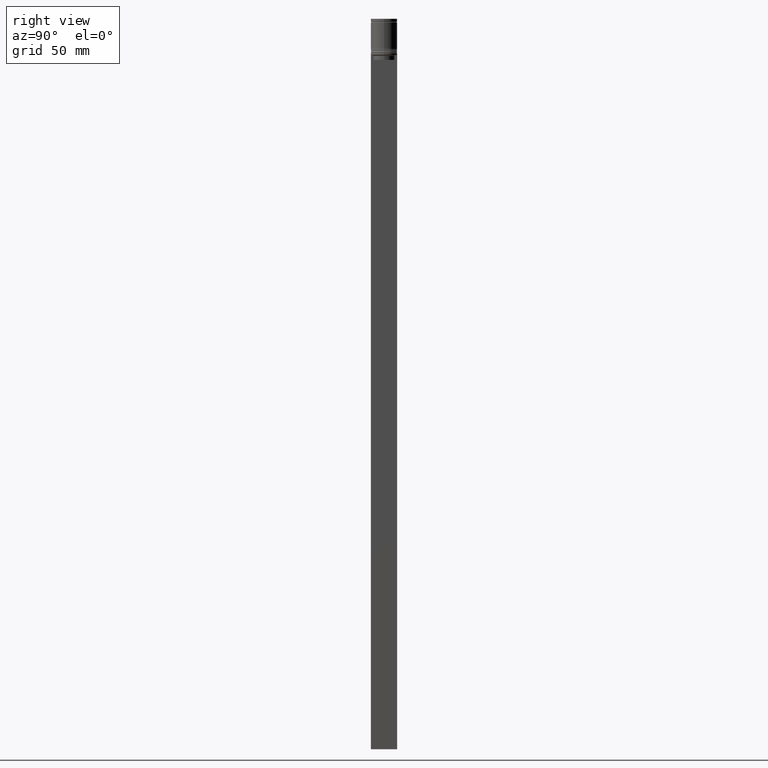
[diagram: clean part render]
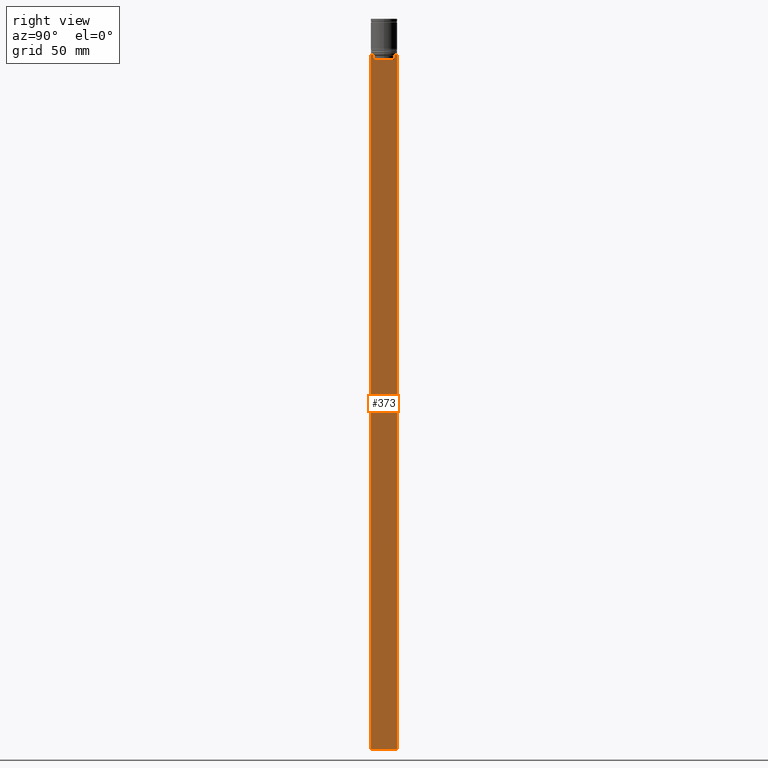
[diagram: same view with one face highlighted and labeled with its STEP entity id]
A machine part, right view. The second image highlights one B-rep face of the part: STEP entity #373.
In plain terms, the highlighted planar face has unit normal (-1, 0, 0).
Its self-contained STEP definition (entity closure, byte-faithful):
#28 = CARTESIAN_POINT ( 'NONE',  ( 0.5000000000000001110, 6.881860213634107382, -22.00000000000000000 ) ) ;
#80 = VERTEX_POINT ( 'NONE', #1444 ) ;
#82 = ORIENTED_EDGE ( 'NONE', *, *, #1868, .F. ) ;
#116 = ORIENTED_EDGE ( 'NONE', *, *, #2067, .T. ) ;
#145 = LINE ( 'NONE', #1569, #670 ) ;
#153 = EDGE_CURVE ( 'NONE', #441, #675, #846, .T. ) ;
#155 = VERTEX_POINT ( 'NONE', #359 ) ;
#168 = EDGE_CURVE ( 'NONE', #1929, #441, #887, .T. ) ;
#175 = LINE ( 'NONE', #1315, #2081 ) ;
#205 = CARTESIAN_POINT ( 'NONE',  ( 0.5000000000000001110, 6.380438856379714530, -22.50000000000000000 ) ) ;
#213 = LINE ( 'NONE', #1212, #303 ) ;
#223 = CARTESIAN_POINT ( 'NONE',  ( 0.5000000000000001110, 6.714736947114698040, -22.16668390704818492 ) ) ;
#230 = CARTESIAN_POINT ( 'NONE',  ( 0.5000000000000001110, 6.380438856379714530, -22.50000000000000000 ) ) ;
#237 = LINE ( 'NONE', #878, #541 ) ;
#241 = LINE ( 'NONE', #1063, #1269 ) ;
#266 = EDGE_CURVE ( 'NONE', #597, #1099, #237, .T. ) ;
#303 = VECTOR ( 'NONE', #1051, 1000.000000000000000 ) ;
#315 = CARTESIAN_POINT ( 'NONE',  ( 0.5000000000000001110, -6.547597841511252348, -22.33335192438651973 ) ) ;
#359 = CARTESIAN_POINT ( 'NONE',  ( 0.5000000000000001110, -8.000000000000003553, -444.0000000000000000 ) ) ;
#371 = CARTESIAN_POINT ( 'NONE',  ( 0.5000000000000001110, 7.884161337770813738, -22.00000000000000000 ) ) ;
#373 = ADVANCED_FACE ( 'NONE', ( #2051 ), #1436, .F. ) ;
#395 = VECTOR ( 'NONE', #2049, 1000.000000000000000 ) ;
#411 = CARTESIAN_POINT ( 'NONE',  ( 0.5000000000000001110, 6.380438856379714530, -24.99999999999999645 ) ) ;
#415 = B_SPLINE_CURVE_WITH_KNOTS ( 'NONE', 3,
 ( #1278, #315, #1422, #2069 ),
 .UNSPECIFIED., .F., .F.,
 ( 4, 4 ),
 ( 0.02996184199614752158, 0.03067452609193706617 ),
 .UNSPECIFIED. ) ;
#441 = VERTEX_POINT ( 'NONE', #28 ) ;
#454 = DIRECTION ( 'NONE',  ( -1.000000000000000000, 0.000000000000000000, 0.000000000000000000 ) ) ;
#479 = DIRECTION ( 'NONE',  ( 0.000000000000000000, 0.000000000000000000, 1.000000000000000000 ) ) ;
#541 = VECTOR ( 'NONE', #2003, 1000.000000000000000 ) ;
#554 = CARTESIAN_POINT ( 'NONE',  ( 0.5000000000000001110, -8.000000000000003553, -22.00000000000000000 ) ) ;
#568 = DIRECTION ( 'NONE',  ( 0.000000000000000000, -1.000000000000000000, 0.000000000000000000 ) ) ;
#588 = ORIENTED_EDGE ( 'NONE', *, *, #168, .T. ) ;
#593 = DIRECTION ( 'NONE',  ( 0.000000000000000000, 1.000000000000000000, 0.000000000000000000 ) ) ;
#597 = VERTEX_POINT ( 'NONE', #411 ) ;
#621 = CARTESIAN_POINT ( 'NONE',  ( 0.5000000000000001110, -8.000000000000003553, -444.0000000000000000 ) ) ;
#627 = ORIENTED_EDGE ( 'NONE', *, *, #1070, .T. ) ;
#645 = CARTESIAN_POINT ( 'NONE',  ( 0.5000000000000001110, -8.000000000000003553, -5.968780458118602361 ) ) ;
#660 = DIRECTION ( 'NONE',  ( -0.000000000000000000, -0.000000000000000000, 1.000000000000000000 ) ) ;
#670 = VECTOR ( 'NONE', #1261, 1000.000000000000000 ) ;
#675 = VERTEX_POINT ( 'NONE', #230 ) ;
#704 = ORIENTED_EDGE ( 'NONE', *, *, #153, .T. ) ;
#756 = EDGE_CURVE ( 'NONE', #1390, #884, #2079, .T. ) ;
#757 = ORIENTED_EDGE ( 'NONE', *, *, #756, .T. ) ;
#789 = EDGE_CURVE ( 'NONE', #831, #1081, #415, .T. ) ;
#792 = ORIENTED_EDGE ( 'NONE', *, *, #1721, .T. ) ;
#826 = DIRECTION ( 'NONE',  ( 0.000000000000000000, 0.000000000000000000, -1.000000000000000000 ) ) ;
#831 = VERTEX_POINT ( 'NONE', #1093 ) ;
#840 = VECTOR ( 'NONE', #1493, 1000.000000000000000 ) ;
#846 = B_SPLINE_CURVE_WITH_KNOTS ( 'NONE', 3,
 ( #2014, #223, #1656, #205 ),
 .UNSPECIFIED., .F., .F.,
 ( 4, 4 ),
 ( 0.01172465562756039650, 0.01243276816391824212 ),
 .UNSPECIFIED. ) ;
#853 = LINE ( 'NONE', #1146, #1943 ) ;
#878 = CARTESIAN_POINT ( 'NONE',  ( 0.5000000000000001110, 6.400000000000006573, -24.99999999999999645 ) ) ;
#884 = VERTEX_POINT ( 'NONE', #1294 ) ;
#887 = LINE ( 'NONE', #554, #840 ) ;
#939 = EDGE_CURVE ( 'NONE', #675, #597, #853, .T. ) ;
#979 = VERTEX_POINT ( 'NONE', #1865 ) ;
#1051 = DIRECTION ( 'NONE',  ( 0.000000000000000000, 0.000000000000000000, -1.000000000000000000 ) ) ;
#1063 = CARTESIAN_POINT ( 'NONE',  ( 0.5000000000000001110, -8.000000000000003553, -22.00000000000000000 ) ) ;
#1070 = EDGE_CURVE ( 'NONE', #979, #1929, #241, .T. ) ;
#1081 = VERTEX_POINT ( 'NONE', #1850 ) ;
#1093 = CARTESIAN_POINT ( 'NONE',  ( 0.5000000000000001110, -6.380438856379714530, -22.50000000000000000 ) ) ;
#1094 = EDGE_CURVE ( 'NONE', #1081, #1390, #145, .T. ) ;
#1099 = VERTEX_POINT ( 'NONE', #1723 ) ;
#1146 = CARTESIAN_POINT ( 'NONE',  ( 0.5000000000000001110, 6.380438856379714530, 0.000000000000000000 ) ) ;
#1176 = VECTOR ( 'NONE', #826, 1000.000000000000000 ) ;
#1211 = ORIENTED_EDGE ( 'NONE', *, *, #1373, .T. ) ;
#1212 = CARTESIAN_POINT ( 'NONE',  ( 0.5000000000000001110, 7.999999999999996447, -5.968780458118602361 ) ) ;
#1255 = CARTESIAN_POINT ( 'NONE',  ( 0.5000000000000001110, -8.000000000000003553, -22.00000000000000000 ) ) ;
#1261 = DIRECTION ( 'NONE',  ( 0.000000000000000000, -1.000000000000000000, 0.000000000000000000 ) ) ;
#1269 = VECTOR ( 'NONE', #568, 1000.000000000000000 ) ;
#1276 = ORIENTED_EDGE ( 'NONE', *, *, #266, .T. ) ;
#1278 = CARTESIAN_POINT ( 'NONE',  ( 0.5000000000000001110, -6.380438856379714530, -22.50000000000000000 ) ) ;
#1294 = CARTESIAN_POINT ( 'NONE',  ( 0.5000000000000001110, -8.000000000000003553, -22.00000000000000000 ) ) ;
#1302 = AXIS2_PLACEMENT_3D ( 'NONE', #645, #454, #479 ) ;
#1315 = CARTESIAN_POINT ( 'NONE',  ( 0.5000000000000001110, -6.380438856379714530, 0.000000000000000000 ) ) ;
#1373 = EDGE_CURVE ( 'NONE', #1099, #831, #175, .T. ) ;
#1390 = VERTEX_POINT ( 'NONE', #1796 ) ;
#1406 = VECTOR ( 'NONE', #593, 1000.000000000000000 ) ;
#1422 = CARTESIAN_POINT ( 'NONE',  ( 0.5000000000000001110, -6.714736947306001014, -22.16668390685738643 ) ) ;
#1436 = PLANE ( 'NONE',  #1302 ) ;
#1444 = CARTESIAN_POINT ( 'NONE',  ( 0.5000000000000001110, 7.999999999999996447, -444.0000000000000000 ) ) ;
#1489 = DIRECTION ( 'NONE',  ( 0.000000000000000000, 0.000000000000000000, -1.000000000000000000 ) ) ;
#1493 = DIRECTION ( 'NONE',  ( 0.000000000000000000, -1.000000000000000000, 0.000000000000000000 ) ) ;
#1549 = LINE ( 'NONE', #621, #1406 ) ;
#1569 = CARTESIAN_POINT ( 'NONE',  ( 0.5000000000000001110, -8.000000000000003553, -22.00000000000000000 ) ) ;
#1618 = ORIENTED_EDGE ( 'NONE', *, *, #939, .T. ) ;
#1640 = ORIENTED_EDGE ( 'NONE', *, *, #1094, .T. ) ;
#1656 = CARTESIAN_POINT ( 'NONE',  ( 0.5000000000000001110, 6.547597841304916955, -22.33335192459222185 ) ) ;
#1721 = EDGE_CURVE ( 'NONE', #884, #155, #1951, .T. ) ;
#1723 = CARTESIAN_POINT ( 'NONE',  ( 0.5000000000000001110, -6.380438856379714530, -24.99999999999999645 ) ) ;
#1755 = EDGE_LOOP ( 'NONE', ( #588, #704, #1618, #1276, #1211, #1832, #1640, #757, #792, #116, #82, #627 ) ) ;
#1794 = CARTESIAN_POINT ( 'NONE',  ( 0.5000000000000001110, -8.000000000000003553, -5.968780458118602361 ) ) ;
#1796 = CARTESIAN_POINT ( 'NONE',  ( 0.5000000000000001110, -7.884161337770813738, -22.00000000000000000 ) ) ;
#1832 = ORIENTED_EDGE ( 'NONE', *, *, #789, .T. ) ;
#1850 = CARTESIAN_POINT ( 'NONE',  ( 0.5000000000000001110, -6.881860213634107382, -22.00000000000000000 ) ) ;
#1865 = CARTESIAN_POINT ( 'NONE',  ( 0.5000000000000001110, 7.999999999999996447, -22.00000000000000000 ) ) ;
#1868 = EDGE_CURVE ( 'NONE', #979, #80, #213, .T. ) ;
#1929 = VERTEX_POINT ( 'NONE', #371 ) ;
#1943 = VECTOR ( 'NONE', #1489, 1000.000000000000000 ) ;
#1951 = LINE ( 'NONE', #1794, #1176 ) ;
#2003 = DIRECTION ( 'NONE',  ( 0.000000000000000000, -1.000000000000000000, 0.000000000000000000 ) ) ;
#2014 = CARTESIAN_POINT ( 'NONE',  ( 0.5000000000000001110, 6.881860213634107382, -22.00000000000000000 ) ) ;
#2049 = DIRECTION ( 'NONE',  ( 0.000000000000000000, -1.000000000000000000, 0.000000000000000000 ) ) ;
#2051 = FACE_OUTER_BOUND ( 'NONE', #1755, .T. ) ;
#2067 = EDGE_CURVE ( 'NONE', #155, #80, #1549, .T. ) ;
#2069 = CARTESIAN_POINT ( 'NONE',  ( 0.5000000000000001110, -6.881860213634107382, -22.00000000000000000 ) ) ;
#2079 = LINE ( 'NONE', #1255, #395 ) ;
#2081 = VECTOR ( 'NONE', #660, 1000.000000000000000 ) ;